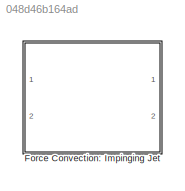
MODEL slx_048d46b164ad
KIND library
CONFIG AbsTol = auto
CONFIG FixedStep = auto
CONFIG MaxStep = auto
CONFIG MinStep = auto
CONFIG RelTol = 1e-3
CONFIG SampleTimeConstraint = Unconstrained
CONFIG Solver = ode45
CONFIG SolverMode = Auto
CONFIG SolverName = ode45
CONFIG StartTime = 0.0
CONFIG StopTime = 10.0
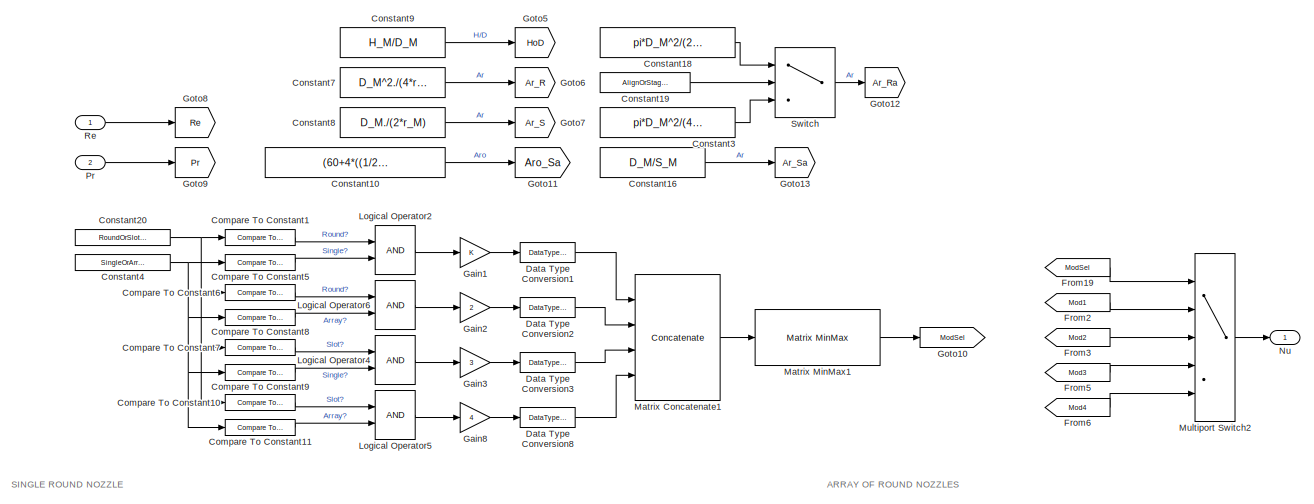
[diagram: Force Convection: Impinging Jet - part 1/4, full width, top band]
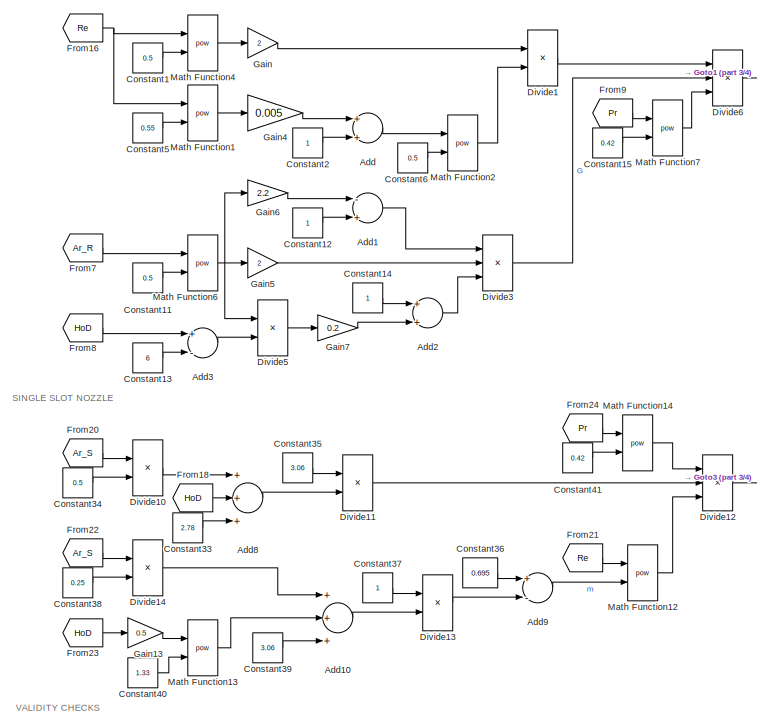
[diagram: Force Convection: Impinging Jet - part 2/4, middle left region]
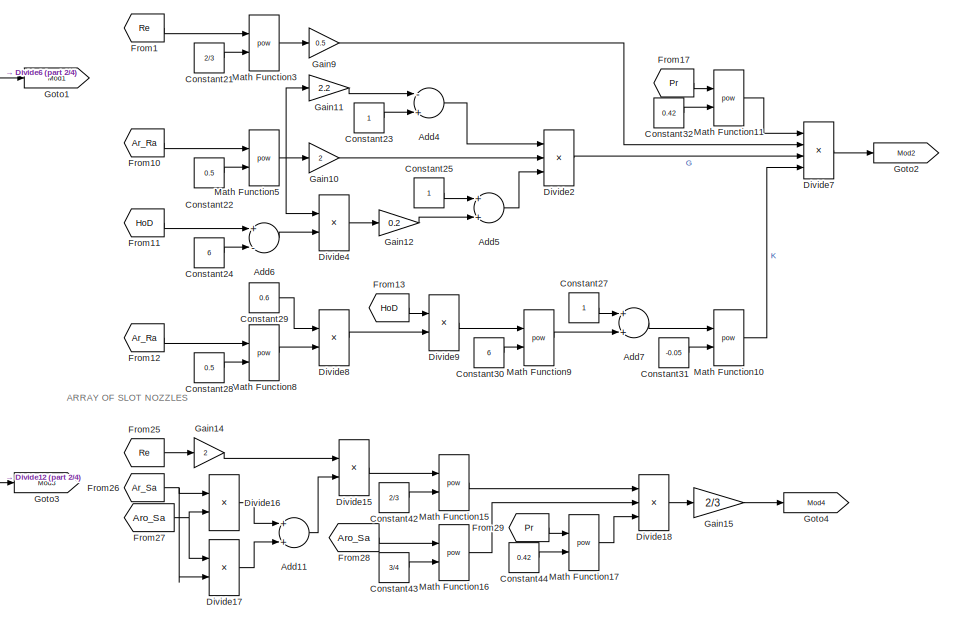
[diagram: Force Convection: Impinging Jet - part 3/4, middle right region]
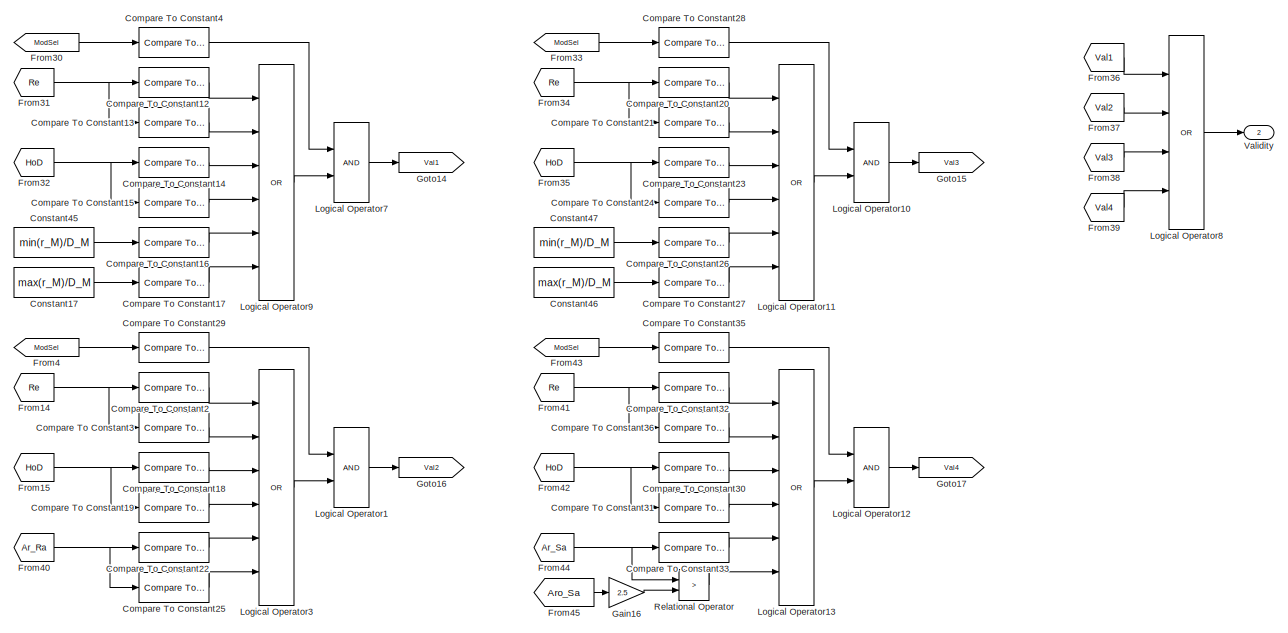
[diagram: Force Convection: Impinging Jet - part 4/4, full width, bottom band]
BLOCK [SubSystem] Force Convection: Impinging Jet
  Ports = [2, 2]
  RequestExecContextInheritance = off
BLOCK [Sum] Force Convection: Impinging Jet/Add
  InputSameDT = off
  OutDataTypeStr = Inherit: Inherit via internal rule
  Ports = [2, 1]
  SaturateOnIntegerOverflow = off
BLOCK [Sum] Force Convection: Impinging Jet/Add1
  InputSameDT = off
  Inputs = -+
  OutDataTypeStr = Inherit: Inherit via internal rule
  Ports = [2, 1]
  SaturateOnIntegerOverflow = off
BLOCK [Sum] Force Convection: Impinging Jet/Add10
  InputSameDT = off
  Inputs = +++
  OutDataTypeStr = Inherit: Inherit via internal rule
  Ports = [3, 1]
  SaturateOnIntegerOverflow = off
BLOCK [Sum] Force Convection: Impinging Jet/Add11
  InputSameDT = off
  OutDataTypeStr = Inherit: Inherit via internal rule
  Ports = [2, 1]
  SaturateOnIntegerOverflow = off
BLOCK [Sum] Force Convection: Impinging Jet/Add2
  InputSameDT = off
  OutDataTypeStr = Inherit: Inherit via internal rule
  Ports = [2, 1]
  SaturateOnIntegerOverflow = off
BLOCK [Sum] Force Convection: Impinging Jet/Add3
  InputSameDT = off
  Inputs = +-
  OutDataTypeStr = Inherit: Inherit via internal rule
  Ports = [2, 1]
  SaturateOnIntegerOverflow = off
BLOCK [Sum] Force Convection: Impinging Jet/Add4
  InputSameDT = off
  Inputs = -+
  OutDataTypeStr = Inherit: Inherit via internal rule
  Ports = [2, 1]
  SaturateOnIntegerOverflow = off
BLOCK [Sum] Force Convection: Impinging Jet/Add5
  InputSameDT = off
  OutDataTypeStr = Inherit: Inherit via internal rule
  Ports = [2, 1]
  SaturateOnIntegerOverflow = off
BLOCK [Sum] Force Convection: Impinging Jet/Add6
  InputSameDT = off
  Inputs = +-
  OutDataTypeStr = Inherit: Inherit via internal rule
  Ports = [2, 1]
  SaturateOnIntegerOverflow = off
BLOCK [Sum] Force Convection: Impinging Jet/Add7
  InputSameDT = off
  OutDataTypeStr = Inherit: Inherit via internal rule
  Ports = [2, 1]
  SaturateOnIntegerOverflow = off
BLOCK [Sum] Force Convection: Impinging Jet/Add8
  InputSameDT = off
  Inputs = +++
  OutDataTypeStr = Inherit: Inherit via internal rule
  Ports = [3, 1]
  SaturateOnIntegerOverflow = off
BLOCK [Sum] Force Convection: Impinging Jet/Add9
  InputSameDT = off
  Inputs = +-
  OutDataTypeStr = Inherit: Inherit via internal rule
  Ports = [2, 1]
  SaturateOnIntegerOverflow = off
BLOCK [Reference] Force Convection: Impinging Jet/Compare To Constant1  REF=simulink/Logic and Bit
Operations/Compare
To Constant
  OutDataTypeStr = boolean
  Ports = [1, 1]
  SourceBlock = simulink/Logic and Bit\nOperations/Compare\nTo Constant
  SourceType = Compare To Constant
  ZeroCross = on
  const = 1
  relop = ==
BLOCK [Reference] Force Convection: Impinging Jet/Compare To Constant10  REF=simulink/Logic and Bit
Operations/Compare
To Constant
  OutDataTypeStr = boolean
  Ports = [1, 1]
  SourceBlock = simulink/Logic and Bit\nOperations/Compare\nTo Constant
  SourceType = Compare To Constant
  ZeroCross = on
  const = 2
  relop = ==
BLOCK [Reference] Force Convection: Impinging Jet/Compare To Constant11  REF=simulink/Logic and Bit
Operations/Compare
To Constant
  OutDataTypeStr = boolean
  Ports = [1, 1]
  SourceBlock = simulink/Logic and Bit\nOperations/Compare\nTo Constant
  SourceType = Compare To Constant
  ZeroCross = on
  const = 2
  relop = ==
BLOCK [Reference] Force Convection: Impinging Jet/Compare To Constant12  REF=simulink/Logic and Bit
Operations/Compare
To Constant
  OutDataTypeStr = boolean
  Ports = [1, 1]
  SourceBlock = simulink/Logic and Bit\nOperations/Compare\nTo Constant
  SourceType = Compare To Constant
  ZeroCross = on
  const = 2000
  relop = <
BLOCK [Reference] Force Convection: Impinging Jet/Compare To Constant13  REF=simulink/Logic and Bit
Operations/Compare
To Constant
  OutDataTypeStr = boolean
  Ports = [1, 1]
  SourceBlock = simulink/Logic and Bit\nOperations/Compare\nTo Constant
  SourceType = Compare To Constant
  ZeroCross = on
  const = 400000
  relop = >
BLOCK [Reference] Force Convection: Impinging Jet/Compare To Constant14  REF=simulink/Logic and Bit
Operations/Compare
To Constant
  OutDataTypeStr = boolean
  Ports = [1, 1]
  SourceBlock = simulink/Logic and Bit\nOperations/Compare\nTo Constant
  SourceType = Compare To Constant
  ZeroCross = on
  const = 2
  relop = <
BLOCK [Reference] Force Convection: Impinging Jet/Compare To Constant15  REF=simulink/Logic and Bit
Operations/Compare
To Constant
  OutDataTypeStr = boolean
  Ports = [1, 1]
  SourceBlock = simulink/Logic and Bit\nOperations/Compare\nTo Constant
  SourceType = Compare To Constant
  ZeroCross = on
  const = 12
  relop = >
BLOCK [Reference] Force Convection: Impinging Jet/Compare To Constant16  REF=simulink/Logic and Bit
Operations/Compare
To Constant
  OutDataTypeStr = boolean
  Ports = [1, 1]
  SourceBlock = simulink/Logic and Bit\nOperations/Compare\nTo Constant
  SourceType = Compare To Constant
  ZeroCross = on
  const = 2.5
  relop = <
BLOCK [Reference] Force Convection: Impinging Jet/Compare To Constant17  REF=simulink/Logic and Bit
Operations/Compare
To Constant
  OutDataTypeStr = boolean
  Ports = [1, 1]
  SourceBlock = simulink/Logic and Bit\nOperations/Compare\nTo Constant
  SourceType = Compare To Constant
  ZeroCross = on
  const = 7.5
  relop = >
BLOCK [Reference] Force Convection: Impinging Jet/Compare To Constant18  REF=simulink/Logic and Bit
Operations/Compare
To Constant
  OutDataTypeStr = boolean
  Ports = [1, 1]
  SourceBlock = simulink/Logic and Bit\nOperations/Compare\nTo Constant
  SourceType = Compare To Constant
  ZeroCross = on
  const = 2
  relop = <
BLOCK [Reference] Force Convection: Impinging Jet/Compare To Constant19  REF=simulink/Logic and Bit
Operations/Compare
To Constant
  OutDataTypeStr = boolean
  Ports = [1, 1]
  SourceBlock = simulink/Logic and Bit\nOperations/Compare\nTo Constant
  SourceType = Compare To Constant
  ZeroCross = on
  const = 12
  relop = >
BLOCK [Reference] Force Convection: Impinging Jet/Compare To Constant2  REF=simulink/Logic and Bit
Operations/Compare
To Constant
  OutDataTypeStr = boolean
  Ports = [1, 1]
  SourceBlock = simulink/Logic and Bit\nOperations/Compare\nTo Constant
  SourceType = Compare To Constant
  ZeroCross = on
  const = 2000
  relop = <
BLOCK [Reference] Force Convection: Impinging Jet/Compare To Constant20  REF=simulink/Logic and Bit
Operations/Compare
To Constant
  OutDataTypeStr = boolean
  Ports = [1, 1]
  SourceBlock = simulink/Logic and Bit\nOperations/Compare\nTo Constant
  SourceType = Compare To Constant
  ZeroCross = on
  const = 3000
  relop = <
BLOCK [Reference] Force Convection: Impinging Jet/Compare To Constant21  REF=simulink/Logic and Bit
Operations/Compare
To Constant
  OutDataTypeStr = boolean
  Ports = [1, 1]
  SourceBlock = simulink/Logic and Bit\nOperations/Compare\nTo Constant
  SourceType = Compare To Constant
  ZeroCross = on
  const = 90000
  relop = >
BLOCK [Reference] Force Convection: Impinging Jet/Compare To Constant22  REF=simulink/Logic and Bit
Operations/Compare
To Constant
  OutDataTypeStr = boolean
  Ports = [1, 1]
  SourceBlock = simulink/Logic and Bit\nOperations/Compare\nTo Constant
  SourceType = Compare To Constant
  ZeroCross = on
  const = 0.004
  relop = <
BLOCK [Reference] Force Convection: Impinging Jet/Compare To Constant23  REF=simulink/Logic and Bit
Operations/Compare
To Constant
  OutDataTypeStr = boolean
  Ports = [1, 1]
  SourceBlock = simulink/Logic and Bit\nOperations/Compare\nTo Constant
  SourceType = Compare To Constant
  ZeroCross = on
  const = 2
  relop = <
BLOCK [Reference] Force Convection: Impinging Jet/Compare To Constant24  REF=simulink/Logic and Bit
Operations/Compare
To Constant
  OutDataTypeStr = boolean
  Ports = [1, 1]
  SourceBlock = simulink/Logic and Bit\nOperations/Compare\nTo Constant
  SourceType = Compare To Constant
  ZeroCross = on
  const = 10
  relop = >
BLOCK [Reference] Force Convection: Impinging Jet/Compare To Constant25  REF=simulink/Logic and Bit
Operations/Compare
To Constant
  OutDataTypeStr = boolean
  Ports = [1, 1]
  SourceBlock = simulink/Logic and Bit\nOperations/Compare\nTo Constant
  SourceType = Compare To Constant
  ZeroCross = on
  const = 0.04
  relop = >
BLOCK [Reference] Force Convection: Impinging Jet/Compare To Constant26  REF=simulink/Logic and Bit
Operations/Compare
To Constant
  OutDataTypeStr = boolean
  Ports = [1, 1]
  SourceBlock = simulink/Logic and Bit\nOperations/Compare\nTo Constant
  SourceType = Compare To Constant
  ZeroCross = on
  const = 4
  relop = <
BLOCK [Reference] Force Convection: Impinging Jet/Compare To Constant27  REF=simulink/Logic and Bit
Operations/Compare
To Constant
  OutDataTypeStr = boolean
  Ports = [1, 1]
  SourceBlock = simulink/Logic and Bit\nOperations/Compare\nTo Constant
  SourceType = Compare To Constant
  ZeroCross = on
  const = 20
  relop = >
BLOCK [Reference] Force Convection: Impinging Jet/Compare To Constant28  REF=simulink/Logic and Bit
Operations/Compare
To Constant
  OutDataTypeStr = boolean
  Ports = [1, 1]
  SourceBlock = simulink/Logic and Bit\nOperations/Compare\nTo Constant
  SourceType = Compare To Constant
  ZeroCross = on
  const = 3
  relop = ==
BLOCK [Reference] Force Convection: Impinging Jet/Compare To Constant29  REF=simulink/Logic and Bit
Operations/Compare
To Constant
  OutDataTypeStr = boolean
  Ports = [1, 1]
  SourceBlock = simulink/Logic and Bit\nOperations/Compare\nTo Constant
  SourceType = Compare To Constant
  ZeroCross = on
  const = 2
  relop = ==
BLOCK [Reference] Force Convection: Impinging Jet/Compare To Constant3  REF=simulink/Logic and Bit
Operations/Compare
To Constant
  OutDataTypeStr = boolean
  Ports = [1, 1]
  SourceBlock = simulink/Logic and Bit\nOperations/Compare\nTo Constant
  SourceType = Compare To Constant
  ZeroCross = on
  const = 100000
  relop = >
BLOCK [Reference] Force Convection: Impinging Jet/Compare To Constant30  REF=simulink/Logic and Bit
Operations/Compare
To Constant
  OutDataTypeStr = boolean
  Ports = [1, 1]
  SourceBlock = simulink/Logic and Bit\nOperations/Compare\nTo Constant
  SourceType = Compare To Constant
  ZeroCross = on
  const = 2
  relop = <
BLOCK [Reference] Force Convection: Impinging Jet/Compare To Constant31  REF=simulink/Logic and Bit
Operations/Compare
To Constant
  OutDataTypeStr = boolean
  Ports = [1, 1]
  SourceBlock = simulink/Logic and Bit\nOperations/Compare\nTo Constant
  SourceType = Compare To Constant
  ZeroCross = on
  const = 80
  relop = >
BLOCK [Reference] Force Convection: Impinging Jet/Compare To Constant32  REF=simulink/Logic and Bit
Operations/Compare
To Constant
  OutDataTypeStr = boolean
  Ports = [1, 1]
  SourceBlock = simulink/Logic and Bit\nOperations/Compare\nTo Constant
  SourceType = Compare To Constant
  ZeroCross = on
  const = 1500
  relop = <
BLOCK [Reference] Force Convection: Impinging Jet/Compare To Constant33  REF=simulink/Logic and Bit
Operations/Compare
To Constant
  OutDataTypeStr = boolean
  Ports = [1, 1]
  SourceBlock = simulink/Logic and Bit\nOperations/Compare\nTo Constant
  SourceType = Compare To Constant
  ZeroCross = on
  const = 0.008
  relop = <
BLOCK [Reference] Force Convection: Impinging Jet/Compare To Constant35  REF=simulink/Logic and Bit
Operations/Compare
To Constant
  OutDataTypeStr = boolean
  Ports = [1, 1]
  SourceBlock = simulink/Logic and Bit\nOperations/Compare\nTo Constant
  SourceType = Compare To Constant
  ZeroCross = on
  const = 4
  relop = ==
BLOCK [Reference] Force Convection: Impinging Jet/Compare To Constant36  REF=simulink/Logic and Bit
Operations/Compare
To Constant
  OutDataTypeStr = boolean
  Ports = [1, 1]
  SourceBlock = simulink/Logic and Bit\nOperations/Compare\nTo Constant
  SourceType = Compare To Constant
  ZeroCross = on
  const = 40000
  relop = >
BLOCK [Reference] Force Convection: Impinging Jet/Compare To Constant4  REF=simulink/Logic and Bit
Operations/Compare
To Constant
  OutDataTypeStr = boolean
  Ports = [1, 1]
  SourceBlock = simulink/Logic and Bit\nOperations/Compare\nTo Constant
  SourceType = Compare To Constant
  ZeroCross = on
  const = 1
  relop = ==
BLOCK [Reference] Force Convection: Impinging Jet/Compare To Constant5  REF=simulink/Logic and Bit
Operations/Compare
To Constant
  OutDataTypeStr = boolean
  Ports = [1, 1]
  SourceBlock = simulink/Logic and Bit\nOperations/Compare\nTo Constant
  SourceType = Compare To Constant
  ZeroCross = on
  const = 1
  relop = ==
BLOCK [Reference] Force Convection: Impinging Jet/Compare To Constant6  REF=simulink/Logic and Bit
Operations/Compare
To Constant
  OutDataTypeStr = boolean
  Ports = [1, 1]
  SourceBlock = simulink/Logic and Bit\nOperations/Compare\nTo Constant
  SourceType = Compare To Constant
  ZeroCross = on
  const = 1
  relop = ==
BLOCK [Reference] Force Convection: Impinging Jet/Compare To Constant7  REF=simulink/Logic and Bit
Operations/Compare
To Constant
  OutDataTypeStr = boolean
  Ports = [1, 1]
  SourceBlock = simulink/Logic and Bit\nOperations/Compare\nTo Constant
  SourceType = Compare To Constant
  ZeroCross = on
  const = 2
  relop = ==
BLOCK [Reference] Force Convection: Impinging Jet/Compare To Constant8  REF=simulink/Logic and Bit
Operations/Compare
To Constant
  OutDataTypeStr = boolean
  Ports = [1, 1]
  SourceBlock = simulink/Logic and Bit\nOperations/Compare\nTo Constant
  SourceType = Compare To Constant
  ZeroCross = on
  const = 2
  relop = ==
BLOCK [Reference] Force Convection: Impinging Jet/Compare To Constant9  REF=simulink/Logic and Bit
Operations/Compare
To Constant
  OutDataTypeStr = boolean
  Ports = [1, 1]
  SourceBlock = simulink/Logic and Bit\nOperations/Compare\nTo Constant
  SourceType = Compare To Constant
  ZeroCross = on
  const = 1
  relop = ==
BLOCK [Constant] Force Convection: Impinging Jet/Constant1
  Value = 0.5
BLOCK [Constant] Force Convection: Impinging Jet/Constant10
  Value = (60+4*((1/2)*(H_M/D_M)-2)^2)^(-1/2)
BLOCK [Constant] Force Convection: Impinging Jet/Constant11
  Value = 0.5
BLOCK [Constant] Force Convection: Impinging Jet/Constant12
BLOCK [Constant] Force Convection: Impinging Jet/Constant13
  Value = 6
BLOCK [Constant] Force Convection: Impinging Jet/Constant14
BLOCK [Constant] Force Convection: Impinging Jet/Constant15
  Value = 0.42
BLOCK [Constant] Force Convection: Impinging Jet/Constant16
  Value = D_M/S_M
BLOCK [Constant] Force Convection: Impinging Jet/Constant17
  Value = max(r_M)/D_M
BLOCK [Constant] Force Convection: Impinging Jet/Constant18
  Value = pi*D_M^2/(2*sqrt(3)*S_M^2)
BLOCK [Constant] Force Convection: Impinging Jet/Constant19
  Value = AlignOrStag_M
BLOCK [Constant] Force Convection: Impinging Jet/Constant2
BLOCK [Constant] Force Convection: Impinging Jet/Constant20
  Value = RoundOrSlot_M
BLOCK [Constant] Force Convection: Impinging Jet/Constant21
  Value = 2/3
BLOCK [Constant] Force Convection: Impinging Jet/Constant22
  Value = 0.5
BLOCK [Constant] Force Convection: Impinging Jet/Constant23
BLOCK [Constant] Force Convection: Impinging Jet/Constant24
  Value = 6
BLOCK [Constant] Force Convection: Impinging Jet/Constant25
BLOCK [Constant] Force Convection: Impinging Jet/Constant27
BLOCK [Constant] Force Convection: Impinging Jet/Constant28
  Value = 0.5
BLOCK [Constant] Force Convection: Impinging Jet/Constant29
  Value = 0.6
BLOCK [Constant] Force Convection: Impinging Jet/Constant3
  Value = pi*D_M^2/(4*S_M^2)
BLOCK [Constant] Force Convection: Impinging Jet/Constant30
  Value = 6
BLOCK [Constant] Force Convection: Impinging Jet/Constant31
  Value = -0.05
BLOCK [Constant] Force Convection: Impinging Jet/Constant32
  Value = 0.42
BLOCK [Constant] Force Convection: Impinging Jet/Constant33
  Value = 2.78
BLOCK [Constant] Force Convection: Impinging Jet/Constant34
  Value = 0.5
BLOCK [Constant] Force Convection: Impinging Jet/Constant35
  Value = 3.06
BLOCK [Constant] Force Convection: Impinging Jet/Constant36
  Value = 0.695
BLOCK [Constant] Force Convection: Impinging Jet/Constant37
BLOCK [Constant] Force Convection: Impinging Jet/Constant38
  Value = 0.25
BLOCK [Constant] Force Convection: Impinging Jet/Constant39
  Value = 3.06
BLOCK [Constant] Force Convection: Impinging Jet/Constant4
  Value = SingleOrArray_M
BLOCK [Constant] Force Convection: Impinging Jet/Constant40
  Value = 1.33
BLOCK [Constant] Force Convection: Impinging Jet/Constant41
  Value = 0.42
BLOCK [Constant] Force Convection: Impinging Jet/Constant42
  Value = 2/3
BLOCK [Constant] Force Convection: Impinging Jet/Constant43
  Value = 3/4
BLOCK [Constant] Force Convection: Impinging Jet/Constant44
  Value = 0.42
BLOCK [Constant] Force Convection: Impinging Jet/Constant45
  Value = min(r_M)/D_M
BLOCK [Constant] Force Convection: Impinging Jet/Constant46
  Value = max(r_M)/D_M
BLOCK [Constant] Force Convection: Impinging Jet/Constant47
  Value = min(r_M)/D_M
BLOCK [Constant] Force Convection: Impinging Jet/Constant5
  Value = 0.55
BLOCK [Constant] Force Convection: Impinging Jet/Constant6
  Value = 0.5
BLOCK [Constant] Force Convection: Impinging Jet/Constant7
  Value = D_M^2./(4*r_M.^2)
BLOCK [Constant] Force Convection: Impinging Jet/Constant8
  Value = D_M./(2*r_M)
BLOCK [Constant] Force Convection: Impinging Jet/Constant9
  Value = H_M/D_M
BLOCK [DataTypeConversion] Force Convection: Impinging Jet/Data Type Conversion1
  OutDataTypeStr = double
  RndMeth = Floor
  SaturateOnIntegerOverflow = off
BLOCK [DataTypeConversion] Force Convection: Impinging Jet/Data Type Conversion2
  OutDataTypeStr = double
  RndMeth = Floor
  SaturateOnIntegerOverflow = off
BLOCK [DataTypeConversion] Force Convection: Impinging Jet/Data Type Conversion3
  OutDataTypeStr = double
  RndMeth = Floor
  SaturateOnIntegerOverflow = off
BLOCK [DataTypeConversion] Force Convection: Impinging Jet/Data Type Conversion8
  OutDataTypeStr = double
  RndMeth = Floor
  SaturateOnIntegerOverflow = off
BLOCK [Product] Force Convection: Impinging Jet/Divide1
  InputSameDT = off
  Inputs = **
  OutDataTypeStr = Inherit: Inherit via internal rule
  Ports = [2, 1]
  RndMeth = Floor
  SaturateOnIntegerOverflow = off
BLOCK [Product] Force Convection: Impinging Jet/Divide10
  InputSameDT = off
  Inputs = /*
  OutDataTypeStr = Inherit: Inherit via internal rule
  Ports = [2, 1]
  RndMeth = Floor
  SaturateOnIntegerOverflow = off
BLOCK [Product] Force Convection: Impinging Jet/Divide11
  InputSameDT = off
  Inputs = */
  OutDataTypeStr = Inherit: Inherit via internal rule
  Ports = [2, 1]
  RndMeth = Floor
  SaturateOnIntegerOverflow = off
BLOCK [Product] Force Convection: Impinging Jet/Divide12
  InputSameDT = off
  Inputs = ***
  OutDataTypeStr = Inherit: Inherit via internal rule
  Ports = [3, 1]
  RndMeth = Floor
  SaturateOnIntegerOverflow = off
BLOCK [Product] Force Convection: Impinging Jet/Divide13
  InputSameDT = off
  Inputs = */
  OutDataTypeStr = Inherit: Inherit via internal rule
  Ports = [2, 1]
  RndMeth = Floor
  SaturateOnIntegerOverflow = off
BLOCK [Product] Force Convection: Impinging Jet/Divide14
  InputSameDT = off
  Inputs = /*
  OutDataTypeStr = Inherit: Inherit via internal rule
  Ports = [2, 1]
  RndMeth = Floor
  SaturateOnIntegerOverflow = off
BLOCK [Product] Force Convection: Impinging Jet/Divide15
  InputSameDT = off
  Inputs = */
  OutDataTypeStr = Inherit: Inherit via internal rule
  Ports = [2, 1]
  RndMeth = Floor
  SaturateOnIntegerOverflow = off
BLOCK [Product] Force Convection: Impinging Jet/Divide16
  InputSameDT = off
  Inputs = */
  OutDataTypeStr = Inherit: Inherit via internal rule
  Ports = [2, 1]
  RndMeth = Floor
  SaturateOnIntegerOverflow = off
BLOCK [Product] Force Convection: Impinging Jet/Divide17
  InputSameDT = off
  Inputs = */
  OutDataTypeStr = Inherit: Inherit via internal rule
  Ports = [2, 1]
  RndMeth = Floor
  SaturateOnIntegerOverflow = off
BLOCK [Product] Force Convection: Impinging Jet/Divide18
  InputSameDT = off
  Inputs = ***
  OutDataTypeStr = Inherit: Inherit via internal rule
  Ports = [3, 1]
  RndMeth = Floor
  SaturateOnIntegerOverflow = off
BLOCK [Product] Force Convection: Impinging Jet/Divide2
  InputSameDT = off
  Inputs = **/
  OutDataTypeStr = Inherit: Inherit via internal rule
  Ports = [3, 1]
  RndMeth = Floor
  SaturateOnIntegerOverflow = off
BLOCK [Product] Force Convection: Impinging Jet/Divide3
  InputSameDT = off
  Inputs = **/
  OutDataTypeStr = Inherit: Inherit via internal rule
  Ports = [3, 1]
  RndMeth = Floor
  SaturateOnIntegerOverflow = off
BLOCK [Product] Force Convection: Impinging Jet/Divide4
  InputSameDT = off
  Inputs = **
  OutDataTypeStr = Inherit: Inherit via internal rule
  Ports = [2, 1]
  RndMeth = Floor
  SaturateOnIntegerOverflow = off
BLOCK [Product] Force Convection: Impinging Jet/Divide5
  InputSameDT = off
  Inputs = **
  OutDataTypeStr = Inherit: Inherit via internal rule
  Ports = [2, 1]
  RndMeth = Floor
  SaturateOnIntegerOverflow = off
BLOCK [Product] Force Convection: Impinging Jet/Divide6
  InputSameDT = off
  Inputs = ***
  OutDataTypeStr = Inherit: Inherit via internal rule
  Ports = [3, 1]
  RndMeth = Floor
  SaturateOnIntegerOverflow = off
BLOCK [Product] Force Convection: Impinging Jet/Divide7
  InputSameDT = off
  Inputs = ****
  OutDataTypeStr = Inherit: Inherit via internal rule
  Ports = [4, 1]
  RndMeth = Floor
  SaturateOnIntegerOverflow = off
BLOCK [Product] Force Convection: Impinging Jet/Divide8
  InputSameDT = off
  Inputs = */
  OutDataTypeStr = Inherit: Inherit via internal rule
  Ports = [2, 1]
  RndMeth = Floor
  SaturateOnIntegerOverflow = off
BLOCK [Product] Force Convection: Impinging Jet/Divide9
  InputSameDT = off
  Inputs = */
  OutDataTypeStr = Inherit: Inherit via internal rule
  Ports = [2, 1]
  RndMeth = Floor
  SaturateOnIntegerOverflow = off
BLOCK [From] Force Convection: Impinging Jet/From1
  GotoTag = Re
BLOCK [From] Force Convection: Impinging Jet/From10
  GotoTag = Ar_Ra
BLOCK [From] Force Convection: Impinging Jet/From11
  GotoTag = HoD
BLOCK [From] Force Convection: Impinging Jet/From12
  GotoTag = Ar_Ra
BLOCK [From] Force Convection: Impinging Jet/From13
  GotoTag = HoD
BLOCK [From] Force Convection: Impinging Jet/From14
  GotoTag = Re
BLOCK [From] Force Convection: Impinging Jet/From15
  GotoTag = HoD
BLOCK [From] Force Convection: Impinging Jet/From16
  GotoTag = Re
BLOCK [From] Force Convection: Impinging Jet/From17
  GotoTag = Pr
BLOCK [From] Force Convection: Impinging Jet/From18
  GotoTag = HoD
BLOCK [From] Force Convection: Impinging Jet/From19
  GotoTag = ModSel
BLOCK [From] Force Convection: Impinging Jet/From2
  GotoTag = Mod1
BLOCK [From] Force Convection: Impinging Jet/From20
  GotoTag = Ar_S
BLOCK [From] Force Convection: Impinging Jet/From21
  GotoTag = Re
BLOCK [From] Force Convection: Impinging Jet/From22
  GotoTag = Ar_S
BLOCK [From] Force Convection: Impinging Jet/From23
  GotoTag = HoD
BLOCK [From] Force Convection: Impinging Jet/From24
  GotoTag = Pr
BLOCK [From] Force Convection: Impinging Jet/From25
  GotoTag = Re
BLOCK [From] Force Convection: Impinging Jet/From26
  GotoTag = Ar_Sa
BLOCK [From] Force Convection: Impinging Jet/From27
  GotoTag = Aro_Sa
BLOCK [From] Force Convection: Impinging Jet/From28
  GotoTag = Aro_Sa
BLOCK [From] Force Convection: Impinging Jet/From29
  GotoTag = Pr
BLOCK [From] Force Convection: Impinging Jet/From3
  GotoTag = Mod2
BLOCK [From] Force Convection: Impinging Jet/From30
  GotoTag = ModSel
BLOCK [From] Force Convection: Impinging Jet/From31
  GotoTag = Re
BLOCK [From] Force Convection: Impinging Jet/From32
  GotoTag = HoD
BLOCK [From] Force Convection: Impinging Jet/From33
  GotoTag = ModSel
BLOCK [From] Force Convection: Impinging Jet/From34
  GotoTag = Re
BLOCK [From] Force Convection: Impinging Jet/From35
  GotoTag = HoD
BLOCK [From] Force Convection: Impinging Jet/From36
  GotoTag = Val1
BLOCK [From] Force Convection: Impinging Jet/From37
  GotoTag = Val2
BLOCK [From] Force Convection: Impinging Jet/From38
  GotoTag = Val3
BLOCK [From] Force Convection: Impinging Jet/From39
  GotoTag = Val4
BLOCK [From] Force Convection: Impinging Jet/From4
  GotoTag = ModSel
BLOCK [From] Force Convection: Impinging Jet/From40
  GotoTag = Ar_Ra
BLOCK [From] Force Convection: Impinging Jet/From41
  GotoTag = Re
BLOCK [From] Force Convection: Impinging Jet/From42
  GotoTag = HoD
BLOCK [From] Force Convection: Impinging Jet/From43
  GotoTag = ModSel
BLOCK [From] Force Convection: Impinging Jet/From44
  GotoTag = Ar_Sa
BLOCK [From] Force Convection: Impinging Jet/From45
  GotoTag = Aro_Sa
BLOCK [From] Force Convection: Impinging Jet/From5
  GotoTag = Mod3
BLOCK [From] Force Convection: Impinging Jet/From6
  GotoTag = Mod4
BLOCK [From] Force Convection: Impinging Jet/From7
  GotoTag = Ar_R
BLOCK [From] Force Convection: Impinging Jet/From8
  GotoTag = HoD
BLOCK [From] Force Convection: Impinging Jet/From9
  GotoTag = Pr
BLOCK [Gain] Force Convection: Impinging Jet/Gain
  Gain = 2
  OutDataTypeStr = Inherit: Inherit via internal rule
  ParamDataTypeStr = Inherit: Inherit via internal rule
  SaturateOnIntegerOverflow = off
BLOCK [Gain] Force Convection: Impinging Jet/Gain1
  OutDataTypeStr = Inherit: Inherit via internal rule
  ParamDataTypeStr = Inherit: Inherit via internal rule
  SaturateOnIntegerOverflow = off
BLOCK [Gain] Force Convection: Impinging Jet/Gain10
  Gain = 2
  OutDataTypeStr = Inherit: Inherit via internal rule
  ParamDataTypeStr = Inherit: Inherit via internal rule
  SaturateOnIntegerOverflow = off
BLOCK [Gain] Force Convection: Impinging Jet/Gain11
  Gain = 2.2
  OutDataTypeStr = Inherit: Inherit via internal rule
  ParamDataTypeStr = Inherit: Inherit via internal rule
  SaturateOnIntegerOverflow = off
BLOCK [Gain] Force Convection: Impinging Jet/Gain12
  Gain = 0.2
  OutDataTypeStr = Inherit: Inherit via internal rule
  ParamDataTypeStr = Inherit: Inherit via internal rule
  SaturateOnIntegerOverflow = off
BLOCK [Gain] Force Convection: Impinging Jet/Gain13
  Gain = 0.5
  OutDataTypeStr = Inherit: Inherit via internal rule
  ParamDataTypeStr = Inherit: Inherit via internal rule
  SaturateOnIntegerOverflow = off
BLOCK [Gain] Force Convection: Impinging Jet/Gain14
  Gain = 2
  OutDataTypeStr = Inherit: Inherit via internal rule
  ParamDataTypeStr = Inherit: Inherit via internal rule
  SaturateOnIntegerOverflow = off
BLOCK [Gain] Force Convection: Impinging Jet/Gain15
  Gain = 2/3
  OutDataTypeStr = Inherit: Inherit via internal rule
  ParamDataTypeStr = Inherit: Inherit via internal rule
  SaturateOnIntegerOverflow = off
BLOCK [Gain] Force Convection: Impinging Jet/Gain16
  Gain = 2.5
  OutDataTypeStr = Inherit: Inherit via internal rule
  ParamDataTypeStr = Inherit: Inherit via internal rule
  SaturateOnIntegerOverflow = off
BLOCK [Gain] Force Convection: Impinging Jet/Gain2
  Gain = 2
  OutDataTypeStr = Inherit: Inherit via internal rule
  ParamDataTypeStr = Inherit: Inherit via internal rule
  SaturateOnIntegerOverflow = off
BLOCK [Gain] Force Convection: Impinging Jet/Gain3
  Gain = 3
  OutDataTypeStr = Inherit: Inherit via internal rule
  ParamDataTypeStr = Inherit: Inherit via internal rule
  SaturateOnIntegerOverflow = off
BLOCK [Gain] Force Convection: Impinging Jet/Gain4
  Gain = 0.005
  OutDataTypeStr = Inherit: Inherit via internal rule
  ParamDataTypeStr = Inherit: Inherit via internal rule
  SaturateOnIntegerOverflow = off
BLOCK [Gain] Force Convection: Impinging Jet/Gain5
  Gain = 2
  OutDataTypeStr = Inherit: Inherit via internal rule
  ParamDataTypeStr = Inherit: Inherit via internal rule
  SaturateOnIntegerOverflow = off
BLOCK [Gain] Force Convection: Impinging Jet/Gain6
  Gain = 2.2
  OutDataTypeStr = Inherit: Inherit via internal rule
  ParamDataTypeStr = Inherit: Inherit via internal rule
  SaturateOnIntegerOverflow = off
BLOCK [Gain] Force Convection: Impinging Jet/Gain7
  Gain = 0.2
  OutDataTypeStr = Inherit: Inherit via internal rule
  ParamDataTypeStr = Inherit: Inherit via internal rule
  SaturateOnIntegerOverflow = off
BLOCK [Gain] Force Convection: Impinging Jet/Gain8
  Gain = 4
  OutDataTypeStr = Inherit: Inherit via internal rule
  ParamDataTypeStr = Inherit: Inherit via internal rule
  SaturateOnIntegerOverflow = off
BLOCK [Gain] Force Convection: Impinging Jet/Gain9
  Gain = 0.5
  OutDataTypeStr = Inherit: Inherit via internal rule
  ParamDataTypeStr = Inherit: Inherit via internal rule
  SaturateOnIntegerOverflow = off
BLOCK [Goto] Force Convection: Impinging Jet/Goto1
  GotoTag = Mod1
BLOCK [Goto] Force Convection: Impinging Jet/Goto10
  GotoTag = ModSel
BLOCK [Goto] Force Convection: Impinging Jet/Goto11
  GotoTag = Aro_Sa
BLOCK [Goto] Force Convection: Impinging Jet/Goto12
  GotoTag = Ar_Ra
BLOCK [Goto] Force Convection: Impinging Jet/Goto13
  GotoTag = Ar_Sa
BLOCK [Goto] Force Convection: Impinging Jet/Goto14
  GotoTag = Val1
BLOCK [Goto] Force Convection: Impinging Jet/Goto15
  GotoTag = Val3
BLOCK [Goto] Force Convection: Impinging Jet/Goto16
  GotoTag = Val2
BLOCK [Goto] Force Convection: Impinging Jet/Goto17
  GotoTag = Val4
BLOCK [Goto] Force Convection: Impinging Jet/Goto2
  GotoTag = Mod2
BLOCK [Goto] Force Convection: Impinging Jet/Goto3
  GotoTag = Mod3
BLOCK [Goto] Force Convection: Impinging Jet/Goto4
  GotoTag = Mod4
BLOCK [Goto] Force Convection: Impinging Jet/Goto5
  GotoTag = HoD
BLOCK [Goto] Force Convection: Impinging Jet/Goto6
  GotoTag = Ar_R
BLOCK [Goto] Force Convection: Impinging Jet/Goto7
  GotoTag = Ar_S
BLOCK [Goto] Force Convection: Impinging Jet/Goto8
  GotoTag = Re
BLOCK [Goto] Force Convection: Impinging Jet/Goto9
  GotoTag = Pr
BLOCK [Logic] Force Convection: Impinging Jet/Logical Operator1
  AllPortsSameDT = off
  OutDataTypeStr = boolean
  Ports = [2, 1]
BLOCK [Logic] Force Convection: Impinging Jet/Logical Operator10
  AllPortsSameDT = off
  OutDataTypeStr = boolean
  Ports = [2, 1]
BLOCK [Logic] Force Convection: Impinging Jet/Logical Operator11
  AllPortsSameDT = off
  Inputs = 6
  Operator = OR
  OutDataTypeStr = boolean
  Ports = [6, 1]
BLOCK [Logic] Force Convection: Impinging Jet/Logical Operator12
  AllPortsSameDT = off
  OutDataTypeStr = boolean
  Ports = [2, 1]
BLOCK [Logic] Force Convection: Impinging Jet/Logical Operator13
  AllPortsSameDT = off
  Inputs = 6
  Operator = OR
  OutDataTypeStr = boolean
  Ports = [6, 1]
BLOCK [Logic] Force Convection: Impinging Jet/Logical Operator2
  AllPortsSameDT = off
  OutDataTypeStr = boolean
  Ports = [2, 1]
BLOCK [Logic] Force Convection: Impinging Jet/Logical Operator3
  AllPortsSameDT = off
  Inputs = 6
  Operator = OR
  OutDataTypeStr = boolean
  Ports = [6, 1]
BLOCK [Logic] Force Convection: Impinging Jet/Logical Operator4
  AllPortsSameDT = off
  OutDataTypeStr = boolean
  Ports = [2, 1]
BLOCK [Logic] Force Convection: Impinging Jet/Logical Operator5
  AllPortsSameDT = off
  OutDataTypeStr = boolean
  Ports = [2, 1]
BLOCK [Logic] Force Convection: Impinging Jet/Logical Operator6
  AllPortsSameDT = off
  OutDataTypeStr = boolean
  Ports = [2, 1]
BLOCK [Logic] Force Convection: Impinging Jet/Logical Operator7
  AllPortsSameDT = off
  OutDataTypeStr = boolean
  Ports = [2, 1]
BLOCK [Logic] Force Convection: Impinging Jet/Logical Operator8
  AllPortsSameDT = off
  Inputs = 4
  Operator = OR
  OutDataTypeStr = boolean
  Ports = [4, 1]
BLOCK [Logic] Force Convection: Impinging Jet/Logical Operator9
  AllPortsSameDT = off
  Inputs = 6
  Operator = OR
  OutDataTypeStr = boolean
  Ports = [6, 1]
BLOCK [Math] Force Convection: Impinging Jet/Math Function1
  Operator = pow
  Ports = [2, 1]
BLOCK [Math] Force Convection: Impinging Jet/Math Function10
  Operator = pow
  Ports = [2, 1]
BLOCK [Math] Force Convection: Impinging Jet/Math Function11
  Operator = pow
  Ports = [2, 1]
BLOCK [Math] Force Convection: Impinging Jet/Math Function12
  Operator = pow
  Ports = [2, 1]
BLOCK [Math] Force Convection: Impinging Jet/Math Function13
  Operator = pow
  Ports = [2, 1]
BLOCK [Math] Force Convection: Impinging Jet/Math Function14
  Operator = pow
  Ports = [2, 1]
BLOCK [Math] Force Convection: Impinging Jet/Math Function15
  Operator = pow
  Ports = [2, 1]
BLOCK [Math] Force Convection: Impinging Jet/Math Function16
  Operator = pow
  Ports = [2, 1]
BLOCK [Math] Force Convection: Impinging Jet/Math Function17
  Operator = pow
  Ports = [2, 1]
BLOCK [Math] Force Convection: Impinging Jet/Math Function2
  Operator = pow
  Ports = [2, 1]
BLOCK [Math] Force Convection: Impinging Jet/Math Function3
  Operator = pow
  Ports = [2, 1]
BLOCK [Math] Force Convection: Impinging Jet/Math Function4
  Operator = pow
  Ports = [2, 1]
BLOCK [Math] Force Convection: Impinging Jet/Math Function5
  Operator = pow
  Ports = [2, 1]
BLOCK [Math] Force Convection: Impinging Jet/Math Function6
  Operator = pow
  Ports = [2, 1]
BLOCK [Math] Force Convection: Impinging Jet/Math Function7
  Operator = pow
  Ports = [2, 1]
BLOCK [Math] Force Convection: Impinging Jet/Math Function8
  Operator = pow
  Ports = [2, 1]
BLOCK [Math] Force Convection: Impinging Jet/Math Function9
  Operator = pow
  Ports = [2, 1]
BLOCK [Concatenate] Force Convection: Impinging Jet/Matrix Concatenate1
  ConcatenateDimension = 2
  Mode = Multidimensional array
  NumInputs = 4
  Ports = [4, 1]
BLOCK [Reference] Force Convection: Impinging Jet/Matrix MinMax1  REF=lib_GenTools_MinMax/Matrix MinMax
  BN_M = gcb
  Ports = [1, 1]
  SourceBlock = lib_GenTools_MinMax/Matrix MinMax
  SourceType = TSAT: Matrix MinMax Block
  all_M = off
  cols_M = off
  minmax_M = off
  rows_M = on
BLOCK [MultiPortSwitch] Force Convection: Impinging Jet/Multiport Switch2
  InputSameDT = off
  Inputs = 4
  Ports = [5, 1]
  SaturateOnIntegerOverflow = off
BLOCK [Outport] Force Convection: Impinging Jet/Nu
  IconDisplay = Port number
BLOCK [Inport] Force Convection: Impinging Jet/Pr
  IconDisplay = Port number
  Port = 2
BLOCK [Inport] Force Convection: Impinging Jet/Re
  IconDisplay = Port number
BLOCK [RelationalOperator] Force Convection: Impinging Jet/Relational Operator
  InputSameDT = off
  Operator = >
  OutDataTypeStr = boolean
  Ports = [2, 1]
BLOCK [Switch] Force Convection: Impinging Jet/Switch
  Criteria = u2 > Threshold
  InputSameDT = off
  SaturateOnIntegerOverflow = off
  Threshold = 1.5
BLOCK [Outport] Force Convection: Impinging Jet/Validity
  IconDisplay = Port number
  Port = 2
ANNOTATION Force Convection: Impinging Jet: ARRAY OF ROUND NOZZLES
ANNOTATION Force Convection: Impinging Jet: ARRAY OF SLOT NOZZLES
ANNOTATION Force Convection: Impinging Jet: SINGLE ROUND NOZZLE
ANNOTATION Force Convection: Impinging Jet: SINGLE SLOT NOZZLE
ANNOTATION Force Convection: Impinging Jet: VALIDITY CHECKS
LINE Force Convection: Impinging Jet/Add10:1 -> Force Convection: Impinging Jet/Divide13:2
LINE Force Convection: Impinging Jet/Add11:1 -> Force Convection: Impinging Jet/Divide15:2
LINE Force Convection: Impinging Jet/Add1:1 -> Force Convection: Impinging Jet/Divide3:1
LINE Force Convection: Impinging Jet/Add2:1 -> Force Convection: Impinging Jet/Divide3:3
LINE Force Convection: Impinging Jet/Add3:1 -> Force Convection: Impinging Jet/Divide5:2
LINE Force Convection: Impinging Jet/Add4:1 -> Force Convection: Impinging Jet/Divide2:1
LINE Force Convection: Impinging Jet/Add5:1 -> Force Convection: Impinging Jet/Divide2:3
LINE Force Convection: Impinging Jet/Add6:1 -> Force Convection: Impinging Jet/Divide4:2
LINE Force Convection: Impinging Jet/Add7:1 -> Force Convection: Impinging Jet/Math Function10:1
LINE Force Convection: Impinging Jet/Add8:1 -> Force Convection: Impinging Jet/Divide11:2
LINE Force Convection: Impinging Jet/Add9:1 -> Force Convection: Impinging Jet/Math Function12:2
LINE Force Convection: Impinging Jet/Add:1 -> Force Convection: Impinging Jet/Math Function2:1
LINE Force Convection: Impinging Jet/Compare To Constant10:1 -> Force Convection: Impinging Jet/Logical Operator5:1
LINE Force Convection: Impinging Jet/Compare To Constant11:1 -> Force Convection: Impinging Jet/Logical Operator5:2
LINE Force Convection: Impinging Jet/Compare To Constant12:1 -> Force Convection: Impinging Jet/Logical Operator9:1
LINE Force Convection: Impinging Jet/Compare To Constant13:1 -> Force Convection: Impinging Jet/Logical Operator9:2
LINE Force Convection: Impinging Jet/Compare To Constant14:1 -> Force Convection: Impinging Jet/Logical Operator9:3
LINE Force Convection: Impinging Jet/Compare To Constant15:1 -> Force Convection: Impinging Jet/Logical Operator9:4
LINE Force Convection: Impinging Jet/Compare To Constant16:1 -> Force Convection: Impinging Jet/Logical Operator9:5
LINE Force Convection: Impinging Jet/Compare To Constant17:1 -> Force Convection: Impinging Jet/Logical Operator9:6
LINE Force Convection: Impinging Jet/Compare To Constant18:1 -> Force Convection: Impinging Jet/Logical Operator3:3
LINE Force Convection: Impinging Jet/Compare To Constant19:1 -> Force Convection: Impinging Jet/Logical Operator3:4
LINE Force Convection: Impinging Jet/Compare To Constant1:1 -> Force Convection: Impinging Jet/Logical Operator2:1
LINE Force Convection: Impinging Jet/Compare To Constant20:1 -> Force Convection: Impinging Jet/Logical Operator11:1
LINE Force Convection: Impinging Jet/Compare To Constant21:1 -> Force Convection: Impinging Jet/Logical Operator11:2
LINE Force Convection: Impinging Jet/Compare To Constant22:1 -> Force Convection: Impinging Jet/Logical Operator3:5
LINE Force Convection: Impinging Jet/Compare To Constant23:1 -> Force Convection: Impinging Jet/Logical Operator11:3
LINE Force Convection: Impinging Jet/Compare To Constant24:1 -> Force Convection: Impinging Jet/Logical Operator11:4
LINE Force Convection: Impinging Jet/Compare To Constant25:1 -> Force Convection: Impinging Jet/Logical Operator3:6
LINE Force Convection: Impinging Jet/Compare To Constant26:1 -> Force Convection: Impinging Jet/Logical Operator11:5
LINE Force Convection: Impinging Jet/Compare To Constant27:1 -> Force Convection: Impinging Jet/Logical Operator11:6
LINE Force Convection: Impinging Jet/Compare To Constant28:1 -> Force Convection: Impinging Jet/Logical Operator10:1
LINE Force Convection: Impinging Jet/Compare To Constant29:1 -> Force Convection: Impinging Jet/Logical Operator1:1
LINE Force Convection: Impinging Jet/Compare To Constant2:1 -> Force Convection: Impinging Jet/Logical Operator3:1
LINE Force Convection: Impinging Jet/Compare To Constant30:1 -> Force Convection: Impinging Jet/Logical Operator13:3
LINE Force Convection: Impinging Jet/Compare To Constant31:1 -> Force Convection: Impinging Jet/Logical Operator13:4
LINE Force Convection: Impinging Jet/Compare To Constant32:1 -> Force Convection: Impinging Jet/Logical Operator13:1
LINE Force Convection: Impinging Jet/Compare To Constant33:1 -> Force Convection: Impinging Jet/Logical Operator13:5
LINE Force Convection: Impinging Jet/Compare To Constant35:1 -> Force Convection: Impinging Jet/Logical Operator12:1
LINE Force Convection: Impinging Jet/Compare To Constant36:1 -> Force Convection: Impinging Jet/Logical Operator13:2
LINE Force Convection: Impinging Jet/Compare To Constant3:1 -> Force Convection: Impinging Jet/Logical Operator3:2
LINE Force Convection: Impinging Jet/Compare To Constant4:1 -> Force Convection: Impinging Jet/Logical Operator7:1
LINE Force Convection: Impinging Jet/Compare To Constant5:1 -> Force Convection: Impinging Jet/Logical Operator2:2
LINE Force Convection: Impinging Jet/Compare To Constant6:1 -> Force Convection: Impinging Jet/Logical Operator6:1
LINE Force Convection: Impinging Jet/Compare To Constant7:1 -> Force Convection: Impinging Jet/Logical Operator4:1
LINE Force Convection: Impinging Jet/Compare To Constant8:1 -> Force Convection: Impinging Jet/Logical Operator6:2
LINE Force Convection: Impinging Jet/Compare To Constant9:1 -> Force Convection: Impinging Jet/Logical Operator4:2
LINE Force Convection: Impinging Jet/Constant10:1 -> Force Convection: Impinging Jet/Goto11:1
LINE Force Convection: Impinging Jet/Constant11:1 -> Force Convection: Impinging Jet/Math Function6:2
LINE Force Convection: Impinging Jet/Constant12:1 -> Force Convection: Impinging Jet/Add1:2
LINE Force Convection: Impinging Jet/Constant13:1 -> Force Convection: Impinging Jet/Add3:2
LINE Force Convection: Impinging Jet/Constant14:1 -> Force Convection: Impinging Jet/Add2:1
LINE Force Convection: Impinging Jet/Constant15:1 -> Force Convection: Impinging Jet/Math Function7:2
LINE Force Convection: Impinging Jet/Constant16:1 -> Force Convection: Impinging Jet/Goto13:1
LINE Force Convection: Impinging Jet/Constant17:1 -> Force Convection: Impinging Jet/Compare To Constant17:1
LINE Force Convection: Impinging Jet/Constant18:1 -> Force Convection: Impinging Jet/Switch:1
LINE Force Convection: Impinging Jet/Constant19:1 -> Force Convection: Impinging Jet/Switch:2
LINE Force Convection: Impinging Jet/Constant1:1 -> Force Convection: Impinging Jet/Math Function4:2
NET Force Convection: Impinging Jet/Constant20:1 -> Force Convection: Impinging Jet/Compare To Constant10:1, Force Convection: Impinging Jet/Compare To Constant1:1, Force Convection: Impinging Jet/Compare To Constant6:1, Force Convection: Impinging Jet/Compare To Constant7:1
LINE Force Convection: Impinging Jet/Constant21:1 -> Force Convection: Impinging Jet/Math Function3:2
LINE Force Convection: Impinging Jet/Constant22:1 -> Force Convection: Impinging Jet/Math Function5:2
LINE Force Convection: Impinging Jet/Constant23:1 -> Force Convection: Impinging Jet/Add4:2
LINE Force Convection: Impinging Jet/Constant24:1 -> Force Convection: Impinging Jet/Add6:2
LINE Force Convection: Impinging Jet/Constant25:1 -> Force Convection: Impinging Jet/Add5:1
LINE Force Convection: Impinging Jet/Constant27:1 -> Force Convection: Impinging Jet/Add7:1
LINE Force Convection: Impinging Jet/Constant28:1 -> Force Convection: Impinging Jet/Math Function8:2
LINE Force Convection: Impinging Jet/Constant29:1 -> Force Convection: Impinging Jet/Divide8:1
LINE Force Convection: Impinging Jet/Constant2:1 -> Force Convection: Impinging Jet/Add:2
LINE Force Convection: Impinging Jet/Constant30:1 -> Force Convection: Impinging Jet/Math Function9:2
LINE Force Convection: Impinging Jet/Constant31:1 -> Force Convection: Impinging Jet/Math Function10:2
LINE Force Convection: Impinging Jet/Constant32:1 -> Force Convection: Impinging Jet/Math Function11:2
LINE Force Convection: Impinging Jet/Constant33:1 -> Force Convection: Impinging Jet/Add8:3
LINE Force Convection: Impinging Jet/Constant34:1 -> Force Convection: Impinging Jet/Divide10:2
LINE Force Convection: Impinging Jet/Constant35:1 -> Force Convection: Impinging Jet/Divide11:1
LINE Force Convection: Impinging Jet/Constant36:1 -> Force Convection: Impinging Jet/Add9:1
LINE Force Convection: Impinging Jet/Constant37:1 -> Force Convection: Impinging Jet/Divide13:1
LINE Force Convection: Impinging Jet/Constant38:1 -> Force Convection: Impinging Jet/Divide14:2
LINE Force Convection: Impinging Jet/Constant39:1 -> Force Convection: Impinging Jet/Add10:3
LINE Force Convection: Impinging Jet/Constant3:1 -> Force Convection: Impinging Jet/Switch:3
LINE Force Convection: Impinging Jet/Constant40:1 -> Force Convection: Impinging Jet/Math Function13:2
LINE Force Convection: Impinging Jet/Constant41:1 -> Force Convection: Impinging Jet/Math Function14:2
LINE Force Convection: Impinging Jet/Constant42:1 -> Force Convection: Impinging Jet/Math Function15:2
LINE Force Convection: Impinging Jet/Constant43:1 -> Force Convection: Impinging Jet/Math Function16:2
LINE Force Convection: Impinging Jet/Constant44:1 -> Force Convection: Impinging Jet/Math Function17:2
LINE Force Convection: Impinging Jet/Constant45:1 -> Force Convection: Impinging Jet/Compare To Constant16:1
LINE Force Convection: Impinging Jet/Constant46:1 -> Force Convection: Impinging Jet/Compare To Constant27:1
LINE Force Convection: Impinging Jet/Constant47:1 -> Force Convection: Impinging Jet/Compare To Constant26:1
NET Force Convection: Impinging Jet/Constant4:1 -> Force Convection: Impinging Jet/Compare To Constant11:1, Force Convection: Impinging Jet/Compare To Constant5:1, Force Convection: Impinging Jet/Compare To Constant8:1, Force Convection: Impinging Jet/Compare To Constant9:1
LINE Force Convection: Impinging Jet/Constant5:1 -> Force Convection: Impinging Jet/Math Function1:2
LINE Force Convection: Impinging Jet/Constant6:1 -> Force Convection: Impinging Jet/Math Function2:2
LINE Force Convection: Impinging Jet/Constant7:1 -> Force Convection: Impinging Jet/Goto6:1
LINE Force Convection: Impinging Jet/Constant8:1 -> Force Convection: Impinging Jet/Goto7:1
LINE Force Convection: Impinging Jet/Constant9:1 -> Force Convection: Impinging Jet/Goto5:1
LINE Force Convection: Impinging Jet/Data Type Conversion1:1 -> Force Convection: Impinging Jet/Matrix Concatenate1:1
LINE Force Convection: Impinging Jet/Data Type Conversion2:1 -> Force Convection: Impinging Jet/Matrix Concatenate1:2
LINE Force Convection: Impinging Jet/Data Type Conversion3:1 -> Force Convection: Impinging Jet/Matrix Concatenate1:3
LINE Force Convection: Impinging Jet/Data Type Conversion8:1 -> Force Convection: Impinging Jet/Matrix Concatenate1:4
LINE Force Convection: Impinging Jet/Divide10:1 -> Force Convection: Impinging Jet/Add8:1
LINE Force Convection: Impinging Jet/Divide11:1 -> Force Convection: Impinging Jet/Divide12:2
LINE Force Convection: Impinging Jet/Divide12:1 -> Force Convection: Impinging Jet/Goto3:1
LINE Force Convection: Impinging Jet/Divide13:1 -> Force Convection: Impinging Jet/Add9:2
LINE Force Convection: Impinging Jet/Divide14:1 -> Force Convection: Impinging Jet/Add10:1
LINE Force Convection: Impinging Jet/Divide15:1 -> Force Convection: Impinging Jet/Math Function15:1
LINE Force Convection: Impinging Jet/Divide16:1 -> Force Convection: Impinging Jet/Add11:1
LINE Force Convection: Impinging Jet/Divide17:1 -> Force Convection: Impinging Jet/Add11:2
LINE Force Convection: Impinging Jet/Divide18:1 -> Force Convection: Impinging Jet/Gain15:1
LINE Force Convection: Impinging Jet/Divide1:1 -> Force Convection: Impinging Jet/Divide6:1
LINE Force Convection: Impinging Jet/Divide2:1 -> Force Convection: Impinging Jet/Divide7:3
LINE Force Convection: Impinging Jet/Divide3:1 -> Force Convection: Impinging Jet/Divide6:2
LINE Force Convection: Impinging Jet/Divide4:1 -> Force Convection: Impinging Jet/Gain12:1
LINE Force Convection: Impinging Jet/Divide5:1 -> Force Convection: Impinging Jet/Gain7:1
LINE Force Convection: Impinging Jet/Divide6:1 -> Force Convection: Impinging Jet/Goto1:1
LINE Force Convection: Impinging Jet/Divide7:1 -> Force Convection: Impinging Jet/Goto2:1
LINE Force Convection: Impinging Jet/Divide8:1 -> Force Convection: Impinging Jet/Divide9:2
LINE Force Convection: Impinging Jet/Divide9:1 -> Force Convection: Impinging Jet/Math Function9:1
LINE Force Convection: Impinging Jet/From10:1 -> Force Convection: Impinging Jet/Math Function5:1
LINE Force Convection: Impinging Jet/From11:1 -> Force Convection: Impinging Jet/Add6:1
LINE Force Convection: Impinging Jet/From12:1 -> Force Convection: Impinging Jet/Math Function8:1
LINE Force Convection: Impinging Jet/From13:1 -> Force Convection: Impinging Jet/Divide9:1
NET Force Convection: Impinging Jet/From14:1 -> Force Convection: Impinging Jet/Compare To Constant2:1, Force Convection: Impinging Jet/Compare To Constant3:1
NET Force Convection: Impinging Jet/From15:1 -> Force Convection: Impinging Jet/Compare To Constant18:1, Force Convection: Impinging Jet/Compare To Constant19:1
NET Force Convection: Impinging Jet/From16:1 -> Force Convection: Impinging Jet/Math Function1:1, Force Convection: Impinging Jet/Math Function4:1
LINE Force Convection: Impinging Jet/From17:1 -> Force Convection: Impinging Jet/Math Function11:1
LINE Force Convection: Impinging Jet/From18:1 -> Force Convection: Impinging Jet/Add8:2
LINE Force Convection: Impinging Jet/From19:1 -> Force Convection: Impinging Jet/Multiport Switch2:1
LINE Force Convection: Impinging Jet/From1:1 -> Force Convection: Impinging Jet/Math Function3:1
LINE Force Convection: Impinging Jet/From20:1 -> Force Convection: Impinging Jet/Divide10:1
LINE Force Convection: Impinging Jet/From21:1 -> Force Convection: Impinging Jet/Math Function12:1
LINE Force Convection: Impinging Jet/From22:1 -> Force Convection: Impinging Jet/Divide14:1
LINE Force Convection: Impinging Jet/From23:1 -> Force Convection: Impinging Jet/Gain13:1
LINE Force Convection: Impinging Jet/From24:1 -> Force Convection: Impinging Jet/Math Function14:1
LINE Force Convection: Impinging Jet/From25:1 -> Force Convection: Impinging Jet/Gain14:1
NET Force Convection: Impinging Jet/From26:1 -> Force Convection: Impinging Jet/Divide16:1, Force Convection: Impinging Jet/Divide17:2
NET Force Convection: Impinging Jet/From27:1 -> Force Convection: Impinging Jet/Divide16:2, Force Convection: Impinging Jet/Divide17:1
LINE Force Convection: Impinging Jet/From28:1 -> Force Convection: Impinging Jet/Math Function16:1
LINE Force Convection: Impinging Jet/From29:1 -> Force Convection: Impinging Jet/Math Function17:1
LINE Force Convection: Impinging Jet/From2:1 -> Force Convection: Impinging Jet/Multiport Switch2:2
LINE Force Convection: Impinging Jet/From30:1 -> Force Convection: Impinging Jet/Compare To Constant4:1
NET Force Convection: Impinging Jet/From31:1 -> Force Convection: Impinging Jet/Compare To Constant12:1, Force Convection: Impinging Jet/Compare To Constant13:1
NET Force Convection: Impinging Jet/From32:1 -> Force Convection: Impinging Jet/Compare To Constant14:1, Force Convection: Impinging Jet/Compare To Constant15:1
LINE Force Convection: Impinging Jet/From33:1 -> Force Convection: Impinging Jet/Compare To Constant28:1
NET Force Convection: Impinging Jet/From34:1 -> Force Convection: Impinging Jet/Compare To Constant20:1, Force Convection: Impinging Jet/Compare To Constant21:1
NET Force Convection: Impinging Jet/From35:1 -> Force Convection: Impinging Jet/Compare To Constant23:1, Force Convection: Impinging Jet/Compare To Constant24:1
LINE Force Convection: Impinging Jet/From36:1 -> Force Convection: Impinging Jet/Logical Operator8:1
LINE Force Convection: Impinging Jet/From37:1 -> Force Convection: Impinging Jet/Logical Operator8:2
LINE Force Convection: Impinging Jet/From38:1 -> Force Convection: Impinging Jet/Logical Operator8:3
LINE Force Convection: Impinging Jet/From39:1 -> Force Convection: Impinging Jet/Logical Operator8:4
LINE Force Convection: Impinging Jet/From3:1 -> Force Convection: Impinging Jet/Multiport Switch2:3
NET Force Convection: Impinging Jet/From40:1 -> Force Convection: Impinging Jet/Compare To Constant22:1, Force Convection: Impinging Jet/Compare To Constant25:1
NET Force Convection: Impinging Jet/From41:1 -> Force Convection: Impinging Jet/Compare To Constant32:1, Force Convection: Impinging Jet/Compare To Constant36:1
NET Force Convection: Impinging Jet/From42:1 -> Force Convection: Impinging Jet/Compare To Constant30:1, Force Convection: Impinging Jet/Compare To Constant31:1
LINE Force Convection: Impinging Jet/From43:1 -> Force Convection: Impinging Jet/Compare To Constant35:1
NET Force Convection: Impinging Jet/From44:1 -> Force Convection: Impinging Jet/Compare To Constant33:1, Force Convection: Impinging Jet/Relational Operator:1
LINE Force Convection: Impinging Jet/From45:1 -> Force Convection: Impinging Jet/Gain16:1
LINE Force Convection: Impinging Jet/From4:1 -> Force Convection: Impinging Jet/Compare To Constant29:1
LINE Force Convection: Impinging Jet/From5:1 -> Force Convection: Impinging Jet/Multiport Switch2:4
LINE Force Convection: Impinging Jet/From6:1 -> Force Convection: Impinging Jet/Multiport Switch2:5
LINE Force Convection: Impinging Jet/From7:1 -> Force Convection: Impinging Jet/Math Function6:1
LINE Force Convection: Impinging Jet/From8:1 -> Force Convection: Impinging Jet/Add3:1
LINE Force Convection: Impinging Jet/From9:1 -> Force Convection: Impinging Jet/Math Function7:1
LINE Force Convection: Impinging Jet/Gain10:1 -> Force Convection: Impinging Jet/Divide2:2
LINE Force Convection: Impinging Jet/Gain11:1 -> Force Convection: Impinging Jet/Add4:1
LINE Force Convection: Impinging Jet/Gain12:1 -> Force Convection: Impinging Jet/Add5:2
LINE Force Convection: Impinging Jet/Gain13:1 -> Force Convection: Impinging Jet/Math Function13:1
LINE Force Convection: Impinging Jet/Gain14:1 -> Force Convection: Impinging Jet/Divide15:1
LINE Force Convection: Impinging Jet/Gain15:1 -> Force Convection: Impinging Jet/Goto4:1
LINE Force Convection: Impinging Jet/Gain16:1 -> Force Convection: Impinging Jet/Relational Operator:2
LINE Force Convection: Impinging Jet/Gain1:1 -> Force Convection: Impinging Jet/Data Type Conversion1:1
LINE Force Convection: Impinging Jet/Gain2:1 -> Force Convection: Impinging Jet/Data Type Conversion2:1
LINE Force Convection: Impinging Jet/Gain3:1 -> Force Convection: Impinging Jet/Data Type Conversion3:1
LINE Force Convection: Impinging Jet/Gain4:1 -> Force Convection: Impinging Jet/Add:1
LINE Force Convection: Impinging Jet/Gain5:1 -> Force Convection: Impinging Jet/Divide3:2
LINE Force Convection: Impinging Jet/Gain6:1 -> Force Convection: Impinging Jet/Add1:1
LINE Force Convection: Impinging Jet/Gain7:1 -> Force Convection: Impinging Jet/Add2:2
LINE Force Convection: Impinging Jet/Gain8:1 -> Force Convection: Impinging Jet/Data Type Conversion8:1
LINE Force Convection: Impinging Jet/Gain9:1 -> Force Convection: Impinging Jet/Divide7:2
LINE Force Convection: Impinging Jet/Gain:1 -> Force Convection: Impinging Jet/Divide1:1
LINE Force Convection: Impinging Jet/Logical Operator10:1 -> Force Convection: Impinging Jet/Goto15:1
LINE Force Convection: Impinging Jet/Logical Operator11:1 -> Force Convection: Impinging Jet/Logical Operator10:2
LINE Force Convection: Impinging Jet/Logical Operator12:1 -> Force Convection: Impinging Jet/Goto17:1
LINE Force Convection: Impinging Jet/Logical Operator13:1 -> Force Convection: Impinging Jet/Logical Operator12:2
LINE Force Convection: Impinging Jet/Logical Operator1:1 -> Force Convection: Impinging Jet/Goto16:1
LINE Force Convection: Impinging Jet/Logical Operator2:1 -> Force Convection: Impinging Jet/Gain1:1
LINE Force Convection: Impinging Jet/Logical Operator3:1 -> Force Convection: Impinging Jet/Logical Operator1:2
LINE Force Convection: Impinging Jet/Logical Operator4:1 -> Force Convection: Impinging Jet/Gain3:1
LINE Force Convection: Impinging Jet/Logical Operator5:1 -> Force Convection: Impinging Jet/Gain8:1
LINE Force Convection: Impinging Jet/Logical Operator6:1 -> Force Convection: Impinging Jet/Gain2:1
LINE Force Convection: Impinging Jet/Logical Operator7:1 -> Force Convection: Impinging Jet/Goto14:1
LINE Force Convection: Impinging Jet/Logical Operator8:1 -> Force Convection: Impinging Jet/Validity:1
LINE Force Convection: Impinging Jet/Logical Operator9:1 -> Force Convection: Impinging Jet/Logical Operator7:2
LINE Force Convection: Impinging Jet/Math Function10:1 -> Force Convection: Impinging Jet/Divide7:4
LINE Force Convection: Impinging Jet/Math Function11:1 -> Force Convection: Impinging Jet/Divide7:1
LINE Force Convection: Impinging Jet/Math Function12:1 -> Force Convection: Impinging Jet/Divide12:3
LINE Force Convection: Impinging Jet/Math Function13:1 -> Force Convection: Impinging Jet/Add10:2
LINE Force Convection: Impinging Jet/Math Function14:1 -> Force Convection: Impinging Jet/Divide12:1
LINE Force Convection: Impinging Jet/Math Function15:1 -> Force Convection: Impinging Jet/Divide18:1
LINE Force Convection: Impinging Jet/Math Function16:1 -> Force Convection: Impinging Jet/Divide18:2
LINE Force Convection: Impinging Jet/Math Function17:1 -> Force Convection: Impinging Jet/Divide18:3
LINE Force Convection: Impinging Jet/Math Function1:1 -> Force Convection: Impinging Jet/Gain4:1
LINE Force Convection: Impinging Jet/Math Function2:1 -> Force Convection: Impinging Jet/Divide1:2
LINE Force Convection: Impinging Jet/Math Function3:1 -> Force Convection: Impinging Jet/Gain9:1
LINE Force Convection: Impinging Jet/Math Function4:1 -> Force Convection: Impinging Jet/Gain:1
NET Force Convection: Impinging Jet/Math Function5:1 -> Force Convection: Impinging Jet/Divide4:1, Force Convection: Impinging Jet/Gain10:1, Force Convection: Impinging Jet/Gain11:1
NET Force Convection: Impinging Jet/Math Function6:1 -> Force Convection: Impinging Jet/Divide5:1, Force Convection: Impinging Jet/Gain5:1, Force Convection: Impinging Jet/Gain6:1
LINE Force Convection: Impinging Jet/Math Function7:1 -> Force Convection: Impinging Jet/Divide6:3
LINE Force Convection: Impinging Jet/Math Function8:1 -> Force Convection: Impinging Jet/Divide8:2
LINE Force Convection: Impinging Jet/Math Function9:1 -> Force Convection: Impinging Jet/Add7:2
LINE Force Convection: Impinging Jet/Matrix Concatenate1:1 -> Force Convection: Impinging Jet/Matrix MinMax1:1
LINE Force Convection: Impinging Jet/Matrix MinMax1:1 -> Force Convection: Impinging Jet/Goto10:1
LINE Force Convection: Impinging Jet/Multiport Switch2:1 -> Force Convection: Impinging Jet/Nu:1
LINE Force Convection: Impinging Jet/Pr:1 -> Force Convection: Impinging Jet/Goto9:1
LINE Force Convection: Impinging Jet/Re:1 -> Force Convection: Impinging Jet/Goto8:1
LINE Force Convection: Impinging Jet/Relational Operator:1 -> Force Convection: Impinging Jet/Logical Operator13:6
LINE Force Convection: Impinging Jet/Switch:1 -> Force Convection: Impinging Jet/Goto12:1
note: NET lines group one-source signal fan-out (src -> all destinations, sorted); 1:1 wires keep LINE
